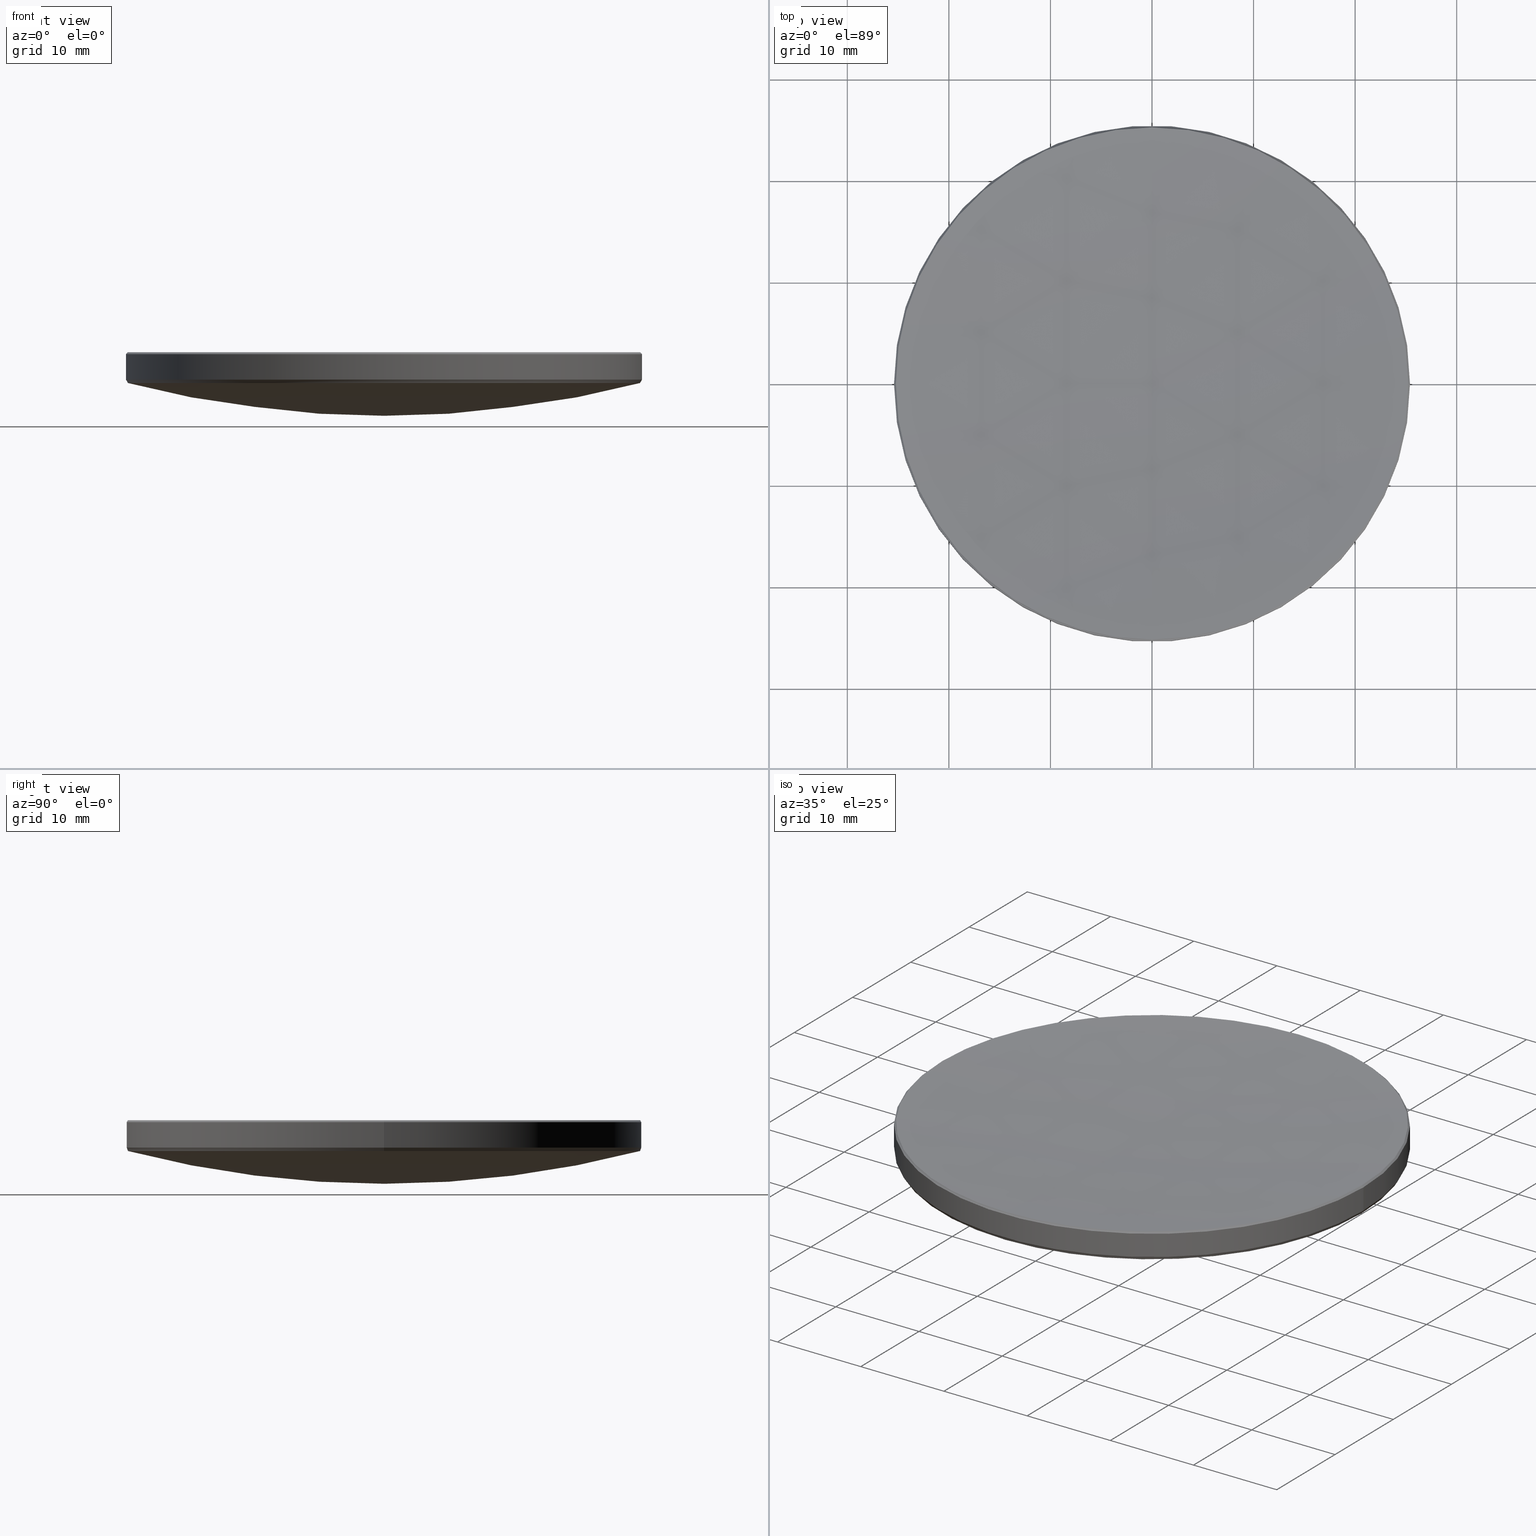
[diagram: canonical four-view strip — front | top / right | iso, engineering-drawing reading convention]
A machine part, canonical four-view strip (front | top / right | iso — engineering-drawing reading convention). The complete STEP part file that produces these views, byte-faithful:
ISO-10303-21;
HEADER;
FILE_DESCRIPTION (( 'STEP AP214' ),
    '1' );
FILE_NAME ('GLM1-050B-300-SWIR.STEP',
    '2024-08-09T02:40:08',
    ( 'Windows User' ),
    ( 'P R C' ),
    'SwSTEP 2.0',
    'SolidWorks 2022',
    '' );
FILE_SCHEMA (( 'AUTOMOTIVE_DESIGN' ));
ENDSEC;

DATA;
#1 =( NAMED_UNIT ( * ) SI_UNIT ( $, .STERADIAN. ) SOLID_ANGLE_UNIT ( ) );
#2 = AXIS2_PLACEMENT_3D ( 'NONE', #36, #12, #121 ) ;
#3 = PRODUCT_DEFINITION_SHAPE ( 'NONE', 'NONE',  #331 ) ;
#4 = LINE ( 'NONE', #318, #110 ) ;
#5 = ORIENTED_EDGE ( 'NONE', *, *, #75, .F. ) ;
#6 = EDGE_CURVE ( 'NONE', #18, #192, #241, .T. ) ;
#7 = EDGE_LOOP ( 'NONE', ( #21, #15, #98, #306, #242 ) ) ;
#8 = DIRECTION ( 'NONE',  ( -1.000000000000000000, 0.000000000000000000, 0.000000000000000000 ) ) ;
#9 = EDGE_LOOP ( 'NONE', ( #24, #288, #215, #254 ) ) ;
#10 = CARTESIAN_POINT ( 'NONE',  ( -25.21668983323140623, 0.000000000000000000, 15.98331016676862681 ) ) ;
#11 = DIRECTION ( 'NONE',  ( -1.000000000000000000, 0.000000000000000000, 0.000000000000000000 ) ) ;
#12 = DIRECTION ( 'NONE',  ( 0.000000000000000000, 0.000000000000000000, -1.000000000000000000 ) ) ;
#13 = FILL_AREA_STYLE ('',( #64 ) ) ;
#14 = AXIS2_PLACEMENT_3D ( 'NONE', #269, #101, #283 ) ;
#15 = ORIENTED_EDGE ( 'NONE', *, *, #313, .F. ) ;
#16 = SURFACE_SIDE_STYLE ('',( #303 ) ) ;
#17 = EDGE_CURVE ( 'NONE', #320, #249, #187, .T. ) ;
#18 = VERTEX_POINT ( 'NONE', #206 ) ;
#19 = DIRECTION ( 'NONE',  ( -0.000000000000000000, -0.000000000000000000, 1.000000000000000000 ) ) ;
#20 = APPLICATION_PROTOCOL_DEFINITION ( 'draft international standard', 'automotive_design', 1998, #260 ) ;
#21 = ORIENTED_EDGE ( 'NONE', *, *, #157, .F. ) ;
#22 = ORIENTED_EDGE ( 'NONE', *, *, #28, .T. ) ;
#23 = ADVANCED_FACE ( 'NONE', ( #103 ), #307, .T. ) ;
#24 = ORIENTED_EDGE ( 'NONE', *, *, #290, .T. ) ;
#25 = PRODUCT ( 'GLM1-050B-300-SWIR', 'GLM1-050B-300-SWIR', '', ( #102 ) ) ;
#26 = AXIS2_PLACEMENT_3D ( 'NONE', #317, #133, #134 ) ;
#27 = ORIENTED_EDGE ( 'NONE', *, *, #204, .T. ) ;
#28 = EDGE_CURVE ( 'NONE', #249, #109, #169, .T. ) ;
#29 = PRODUCT_DEFINITION_FORMATION_WITH_SPECIFIED_SOURCE ( '�κ�', '', #25, .NOT_KNOWN. ) ;
#30 = ORIENTED_EDGE ( 'NONE', *, *, #321, .T. ) ;
#31 = DIRECTION ( 'NONE',  ( 1.000000000000000000, 0.000000000000000000, 0.000000000000000000 ) ) ;
#32 = CARTESIAN_POINT ( 'NONE',  ( -25.39999999999999858, 0.000000000000000000, 13.28032383718598375 ) ) ;
#33 = VECTOR ( 'NONE', #247, 1000.000000000000114 ) ;
#34 = FACE_OUTER_BOUND ( 'NONE', #309, .T. ) ;
#35 = CARTESIAN_POINT ( 'NONE',  ( 25.39999999999999858, 3.110602869834276865E-15, 20.00000000000000000 ) ) ;
#36 = CARTESIAN_POINT ( 'NONE',  ( 0.000000000000000000, 0.000000000000000000, 15.98331016676862681 ) ) ;
#37 = CARTESIAN_POINT ( 'NONE',  ( 25.21668983323140623, 3.099378359385061019E-15, 15.98331016676862681 ) ) ;
#38 = ORIENTED_EDGE ( 'NONE', *, *, #151, .T. ) ;
#39 = ADVANCED_FACE ( 'NONE', ( #83 ), #265, .F. ) ;
#40 = LINE ( 'NONE', #35, #220 ) ;
#41 = VERTEX_POINT ( 'NONE', #85 ) ;
#42 = CIRCLE ( 'NONE', #164, 279.1200000000000614 ) ;
#43 = DIRECTION ( 'NONE',  ( -0.000000000000000000, -0.000000000000000000, -1.000000000000000000 ) ) ;
#44 = ORIENTED_EDGE ( 'NONE', *, *, #28, .F. ) ;
#45 = CARTESIAN_POINT ( 'NONE',  ( 0.000000000000000000, 0.000000000000000000, 20.00000000000000000 ) ) ;
#46 = LINE ( 'NONE', #207, #172 ) ;
#47 = VERTEX_POINT ( 'NONE', #52 ) ;
#48 = APPLICATION_PROTOCOL_DEFINITION ( 'draft international standard', 'automotive_design', 1998, #106 ) ;
#49 = ORIENTED_EDGE ( 'NONE', *, *, #204, .F. ) ;
#50 = FILL_AREA_STYLE_COLOUR ( '', #271 ) ;
#51 = EDGE_CURVE ( 'NONE', #192, #253, #4, .T. ) ;
#52 = CARTESIAN_POINT ( 'NONE',  ( -25.20669079081242003, 3.098766094620413518E-15, 12.94948413701273182 ) ) ;
#53 = CIRCLE ( 'NONE', #289, 25.39999999999999858 ) ;
#54 = ORIENTED_EDGE ( 'NONE', *, *, #211, .F. ) ;
#55 = FACE_OUTER_BOUND ( 'NONE', #262, .T. ) ;
#56 = CONICAL_SURFACE ( 'NONE', #2, 25.21668983323140623, 0.7853981633973063925 ) ;
#57 = DIRECTION ( 'NONE',  ( 0.000000000000000000, 0.000000000000000000, -1.000000000000000000 ) ) ;
#58 = AXIS2_PLACEMENT_3D ( 'NONE', #92, #57, #165 ) ;
#59 = ADVANCED_BREP_SHAPE_REPRESENTATION ( 'GLM1-050B-300-SWIR', ( #246, #116 ), #213 ) ;
#60 = DIRECTION ( 'NONE',  ( -0.000000000000000000, -0.000000000000000000, -1.000000000000000000 ) ) ;
#61 = AXIS2_PLACEMENT_3D ( 'NONE', #45, #210, #232 ) ;
#62 = SURFACE_STYLE_USAGE ( .BOTH. , #16 ) ;
#63 = VECTOR ( 'NONE', #60, 1000.000000000000000 ) ;
#64 = FILL_AREA_STYLE_COLOUR ( '', #111 ) ;
#65 = ORIENTED_EDGE ( 'NONE', *, *, #211, .T. ) ;
#66 = EDGE_CURVE ( 'NONE', #192, #174, #191, .T. ) ;
#67 = DIRECTION ( 'NONE',  ( 1.000000000000000000, 0.000000000000000000, 0.000000000000000000 ) ) ;
#68 = ORIENTED_EDGE ( 'NONE', *, *, #157, .T. ) ;
#69 = STYLED_ITEM ( 'NONE', ( #235 ), #59 ) ;
#70 = CARTESIAN_POINT ( 'NONE',  ( 0.000000000000000000, 0.000000000000000000, 12.94948413701273182 ) ) ;
#71 = CONICAL_SURFACE ( 'NONE', #310, 25.39999999999999858, 0.5287944249354518123 ) ;
#72 = CARTESIAN_POINT ( 'NONE',  ( 0.000000000000000000, 0.000000000000000000, 13.28032383718598375 ) ) ;
#73 = FILL_AREA_STYLE ('',( #50 ) ) ;
#74 = EDGE_LOOP ( 'NONE', ( #152, #287, #185, #123 ) ) ;
#75 = EDGE_CURVE ( 'NONE', #109, #197, #200, .T. ) ;
#76 = CARTESIAN_POINT ( 'NONE',  ( 0.000000000000000000, 0.000000000000000000, 293.9618937912173351 ) ) ;
#77 = AXIS2_PLACEMENT_3D ( 'NONE', #167, #328, #93 ) ;
#78 = VERTEX_POINT ( 'NONE', #224 ) ;
#79 = ADVANCED_FACE ( 'NONE', ( #95 ), #282, .T. ) ;
#80 = DIRECTION ( 'NONE',  ( 1.000000000000000000, 0.000000000000000000, 0.000000000000000000 ) ) ;
#81 = CIRCLE ( 'NONE', #316, 25.20669079081241648 ) ;
#82 = CARTESIAN_POINT ( 'NONE',  ( 0.000000000000000000, 0.000000000000000000, 12.94948413701273182 ) ) ;
#83 = FACE_OUTER_BOUND ( 'NONE', #138, .T. ) ;
#84 = UNCERTAINTY_MEASURE_WITH_UNIT (LENGTH_MEASURE( 1.000000000000000082E-05 ), #182, 'distance_accuracy_value', 'NONE');
#85 = CARTESIAN_POINT ( 'NONE',  ( -3.088153848935836496E-15, -25.21668983323133872, 15.98331016676862681 ) ) ;
#86 = PRESENTATION_LAYER_ASSIGNMENT (  '', '', ( #69 ) ) ;
#87 = VERTEX_POINT ( 'NONE', #295 ) ;
#88 = AXIS2_PLACEMENT_3D ( 'NONE', #82, #194, #91 ) ;
#89 = DIRECTION ( 'NONE',  ( -1.224646799147352961E-16, -1.000000000000000000, 0.000000000000000000 ) ) ;
#90 = CARTESIAN_POINT ( 'NONE',  ( 0.000000000000000000, 0.000000000000000000, 15.98331016676862681 ) ) ;
#91 = DIRECTION ( 'NONE',  ( 1.000000000000000000, 0.000000000000000000, 0.000000000000000000 ) ) ;
#92 = CARTESIAN_POINT ( 'NONE',  ( 0.000000000000000000, 0.000000000000000000, 15.79999999999998117 ) ) ;
#93 = DIRECTION ( 'NONE',  ( 1.000000000000000000, 0.000000000000000000, 0.000000000000000000 ) ) ;
#94 = DIRECTION ( 'NONE',  ( -0.000000000000000000, -0.000000000000000000, 1.000000000000000000 ) ) ;
#95 = FACE_OUTER_BOUND ( 'NONE', #135, .T. ) ;
#96 = DIRECTION ( 'NONE',  ( -0.000000000000000000, -0.000000000000000000, 1.000000000000000000 ) ) ;
#97 = EDGE_CURVE ( 'NONE', #78, #197, #129, .T. ) ;
#98 = ORIENTED_EDGE ( 'NONE', *, *, #176, .F. ) ;
#99 = CARTESIAN_POINT ( 'NONE',  ( 0.000000000000000000, 25.21668983323133872, 15.98331016676862681 ) ) ;
#100 = ORIENTED_EDGE ( 'NONE', *, *, #136, .T. ) ;
#101 = DIRECTION ( 'NONE',  ( -0.000000000000000000, -0.000000000000000000, 1.000000000000000000 ) ) ;
#102 = PRODUCT_CONTEXT ( 'NONE', #106, 'mechanical' ) ;
#103 = FACE_OUTER_BOUND ( 'NONE', #9, .T. ) ;
#104 = CIRCLE ( 'NONE', #198, 25.39999999999999858 ) ;
#105 = EDGE_CURVE ( 'NONE', #231, #41, #233, .T. ) ;
#106 = APPLICATION_CONTEXT ( 'automotive_design' ) ;
#107 = AXIS2_PLACEMENT_3D ( 'NONE', #196, #166, #266 ) ;
#108 = DIRECTION ( 'NONE',  ( -1.000000000000000000, 0.000000000000000000, 0.000000000000000000 ) ) ;
#109 = VERTEX_POINT ( 'NONE', #10 ) ;
#110 = VECTOR ( 'NONE', #240, 1000.000000000000000 ) ;
#111 = COLOUR_RGB ( '',1.000000000000000000, 1.000000000000000000, 1.000000000000000000 ) ;
#112 = CARTESIAN_POINT ( 'NONE',  ( -3.086929319406547016E-15, -25.20669079081240582, 12.94948413701272472 ) ) ;
#113 = ORIENTED_EDGE ( 'NONE', *, *, #136, .F. ) ;
#114 = CARTESIAN_POINT ( 'NONE',  ( 0.000000000000000000, 0.000000000000000000, 293.9618937912173351 ) ) ;
#115 = ADVANCED_FACE ( 'NONE', ( #119 ), #267, .T. ) ;
#116 = AXIS2_PLACEMENT_3D ( 'NONE', #131, #158, #188 ) ;
#117 = DIRECTION ( 'NONE',  ( 0.000000000000000000, 1.000000000000000000, 0.000000000000000000 ) ) ;
#118 = AXIS2_PLACEMENT_3D ( 'NONE', #139, #8, #117 ) ;
#119 = FACE_OUTER_BOUND ( 'NONE', #286, .T. ) ;
#120 = SPHERICAL_SURFACE ( 'NONE', #142, 279.1200000000000614 ) ;
#121 = DIRECTION ( 'NONE',  ( -1.000000000000000000, 0.000000000000000000, 0.000000000000000000 ) ) ;
#122 = DIRECTION ( 'NONE',  ( -1.000000000000000000, 1.224646799147353207E-16, 0.000000000000000000 ) ) ;
#123 = ORIENTED_EDGE ( 'NONE', *, *, #301, .T. ) ;
#124 = STYLED_ITEM ( 'NONE', ( #125 ), #246 ) ;
#125 = PRESENTATION_STYLE_ASSIGNMENT (( #62 ) ) ;
#126 = DIRECTION ( 'NONE',  ( 1.000000000000000000, -0.000000000000000000, 0.000000000000000000 ) ) ;
#127 = ORIENTED_EDGE ( 'NONE', *, *, #51, .F. ) ;
#128 = ORIENTED_EDGE ( 'NONE', *, *, #313, .T. ) ;
#129 = CIRCLE ( 'NONE', #58, 25.39999999999999858 ) ;
#130 = ORIENTED_EDGE ( 'NONE', *, *, #6, .T. ) ;
#131 = CARTESIAN_POINT ( 'NONE',  ( 0.000000000000000000, 0.000000000000000000, 0.000000000000000000 ) ) ;
#132 = AXIS2_PLACEMENT_3D ( 'NONE', #263, #94, #173 ) ;
#133 = DIRECTION ( 'NONE',  ( -1.000000000000000000, 0.000000000000000000, 0.000000000000000000 ) ) ;
#134 = DIRECTION ( 'NONE',  ( 0.000000000000000000, 1.000000000000000000, 0.000000000000000000 ) ) ;
#135 = EDGE_LOOP ( 'NONE', ( #113, #65, #154, #127, #238 ) ) ;
#136 = EDGE_CURVE ( 'NONE', #47, #18, #81, .T. ) ;
#137 = CARTESIAN_POINT ( 'NONE',  ( 25.20669079081242003, 0.000000000000000000, 12.94948413701273182 ) ) ;
#138 = EDGE_LOOP ( 'NONE', ( #209, #38, #22, #156 ) ) ;
#139 = CARTESIAN_POINT ( 'NONE',  ( 0.000000000000000000, 0.000000000000000000, 109.8031321807306142 ) ) ;
#140 = UNCERTAINTY_MEASURE_WITH_UNIT (LENGTH_MEASURE( 1.000000000000000082E-05 ), #329, 'distance_accuracy_value', 'NONE');
#141 = CARTESIAN_POINT ( 'NONE',  ( 0.000000000000000000, 0.000000000000000000, 13.28032383718598375 ) ) ;
#142 = AXIS2_PLACEMENT_3D ( 'NONE', #305, #299, #221 ) ;
#143 = ADVANCED_FACE ( 'NONE', ( #55 ), #293, .T. ) ;
#144 = DIRECTION ( 'NONE',  ( 0.000000000000000000, 0.000000000000000000, -1.000000000000000000 ) ) ;
#145 = CARTESIAN_POINT ( 'NONE',  ( 0.000000000000000000, 0.000000000000000000, 109.8031321807306142 ) ) ;
#146 = ORIENTED_EDGE ( 'NONE', *, *, #17, .T. ) ;
#147 = CIRCLE ( 'NONE', #227, 25.21668983323140623 ) ;
#148 = DIRECTION ( 'NONE',  ( -0.000000000000000000, -0.000000000000000000, -1.000000000000000000 ) ) ;
#149 = ORIENTED_EDGE ( 'NONE', *, *, #17, .F. ) ;
#150 = DIRECTION ( 'NONE',  ( -0.000000000000000000, -0.000000000000000000, 1.000000000000000000 ) ) ;
#151 = EDGE_CURVE ( 'NONE', #231, #249, #42, .T. ) ;
#152 = ORIENTED_EDGE ( 'NONE', *, *, #239, .F. ) ;
#153 = FACE_OUTER_BOUND ( 'NONE', #183, .T. ) ;
#154 = ORIENTED_EDGE ( 'NONE', *, *, #163, .F. ) ;
#155 = CLOSED_SHELL ( 'NONE', ( #79, #168, #275, #143, #23, #296, #115, #39, #259, #228 ) ) ;
#156 = ORIENTED_EDGE ( 'NONE', *, *, #176, .T. ) ;
#157 = EDGE_CURVE ( 'NONE', #320, #78, #161, .T. ) ;
#158 = DIRECTION ( 'NONE',  ( 0.000000000000000000, 0.000000000000000000, 1.000000000000000000 ) ) ;
#159 = UNCERTAINTY_MEASURE_WITH_UNIT (LENGTH_MEASURE( 1.000000000000000082E-05 ), #245, 'distance_accuracy_value', 'NONE');
#160 = PRESENTATION_LAYER_ASSIGNMENT (  '', '', ( #124 ) ) ;
#161 = LINE ( 'NONE', #216, #273 ) ;
#162 = DIRECTION ( 'NONE',  ( 0.7071067811864470976, 8.659560562353703961E-17, -0.7071067811866478259 ) ) ;
#163 = EDGE_CURVE ( 'NONE', #253, #277, #319, .T. ) ;
#164 = AXIS2_PLACEMENT_3D ( 'NONE', #76, #193, #190 ) ;
#165 = DIRECTION ( 'NONE',  ( 1.000000000000000000, 0.000000000000000000, 0.000000000000000000 ) ) ;
#166 = DIRECTION ( 'NONE',  ( -0.000000000000000000, -0.000000000000000000, 1.000000000000000000 ) ) ;
#167 = CARTESIAN_POINT ( 'NONE',  ( 0.000000000000000000, 0.000000000000000000, 12.94948413701273182 ) ) ;
#168 = ADVANCED_FACE ( 'NONE', ( #34 ), #56, .T. ) ;
#169 = CIRCLE ( 'NONE', #302, 25.21668983323140623 ) ;
#170 = ORIENTED_EDGE ( 'NONE', *, *, #66, .T. ) ;
#171 = FACE_OUTER_BOUND ( 'NONE', #7, .T. ) ;
#172 = VECTOR ( 'NONE', #308, 1000.000000000000000 ) ;
#173 = DIRECTION ( 'NONE',  ( -1.000000000000000000, 0.000000000000000000, 0.000000000000000000 ) ) ;
#174 = VERTEX_POINT ( 'NONE', #112 ) ;
#175 = CARTESIAN_POINT ( 'NONE',  ( 0.000000000000000000, 0.000000000000000000, 15.98331016676862681 ) ) ;
#176 = EDGE_CURVE ( 'NONE', #109, #41, #244, .T. ) ;
#177 = CIRCLE ( 'NONE', #77, 25.20669079081241648 ) ;
#178 = LINE ( 'NONE', #252, #63 ) ;
#179 = ORIENTED_EDGE ( 'NONE', *, *, #327, .F. ) ;
#180 = AXIS2_PLACEMENT_3D ( 'NONE', #114, #325, #89 ) ;
#181 = DIRECTION ( 'NONE',  ( -0.000000000000000000, -0.000000000000000000, 1.000000000000000000 ) ) ;
#182 =( LENGTH_UNIT ( ) NAMED_UNIT ( * ) SI_UNIT ( .MILLI., .METRE. ) );
#183 = EDGE_LOOP ( 'NONE', ( #54, #294, #229, #203, #234 ) ) ;
#184 = SURFACE_STYLE_USAGE ( .BOTH. , #258 ) ;
#185 = ORIENTED_EDGE ( 'NONE', *, *, #236, .T. ) ;
#186 = PRODUCT_RELATED_PRODUCT_CATEGORY ( 'part', '', ( #25 ) ) ;
#187 = CIRCLE ( 'NONE', #14, 25.21668983323140623 ) ;
#188 = DIRECTION ( 'NONE',  ( 1.000000000000000000, 0.000000000000000000, 0.000000000000000000 ) ) ;
#189 =( NAMED_UNIT ( * ) PLANE_ANGLE_UNIT ( ) SI_UNIT ( $, .RADIAN. ) );
#190 = DIRECTION ( 'NONE',  ( 0.000000000000000000, 0.000000000000000000, -1.000000000000000000 ) ) ;
#191 = CIRCLE ( 'NONE', #88, 25.20669079081241648 ) ;
#192 = VERTEX_POINT ( 'NONE', #137 ) ;
#193 = DIRECTION ( 'NONE',  ( 1.000000000000000000, 0.000000000000000000, 0.000000000000000000 ) ) ;
#194 = DIRECTION ( 'NONE',  ( 0.000000000000000000, 0.000000000000000000, -1.000000000000000000 ) ) ;
#195 = CIRCLE ( 'NONE', #219, 100.0800000000000125 ) ;
#196 = CARTESIAN_POINT ( 'NONE',  ( 0.000000000000000000, 0.000000000000000000, 15.98331016676862681 ) ) ;
#197 = VERTEX_POINT ( 'NONE', #268 ) ;
#198 = AXIS2_PLACEMENT_3D ( 'NONE', #248, #202, #67 ) ;
#199 = DIRECTION ( 'NONE',  ( 1.000000000000000000, 0.000000000000000000, 0.000000000000000000 ) ) ;
#200 = LINE ( 'NONE', #300, #33 ) ;
#201 = DIRECTION ( 'NONE',  ( -1.224646799147353207E-16, -1.000000000000000000, 0.000000000000000000 ) ) ;
#202 = DIRECTION ( 'NONE',  ( 0.000000000000000000, 0.000000000000000000, -1.000000000000000000 ) ) ;
#203 = ORIENTED_EDGE ( 'NONE', *, *, #51, .T. ) ;
#204 = EDGE_CURVE ( 'NONE', #87, #18, #261, .T. ) ;
#205 = CARTESIAN_POINT ( 'NONE',  ( 25.39999999999999858, 3.110602869834276865E-15, 13.28032383718598375 ) ) ;
#206 = CARTESIAN_POINT ( 'NONE',  ( 0.000000000000000000, 25.20669079081240582, 12.94948413701272472 ) ) ;
#207 = CARTESIAN_POINT ( 'NONE',  ( -25.39999999999999858, 3.110602869834276865E-15, 13.28032383718598375 ) ) ;
#208 =( NAMED_UNIT ( * ) PLANE_ANGLE_UNIT ( ) SI_UNIT ( $, .RADIAN. ) );
#209 = ORIENTED_EDGE ( 'NONE', *, *, #105, .F. ) ;
#210 = DIRECTION ( 'NONE',  ( -0.000000000000000000, -0.000000000000000000, -1.000000000000000000 ) ) ;
#211 = EDGE_CURVE ( 'NONE', #47, #277, #46, .T. ) ;
#212 = EDGE_LOOP ( 'NONE', ( #322, #311, #128, #146 ) ) ;
#213 =( GEOMETRIC_REPRESENTATION_CONTEXT ( 3 ) GLOBAL_UNCERTAINTY_ASSIGNED_CONTEXT ( ( #140 ) ) GLOBAL_UNIT_ASSIGNED_CONTEXT ( ( #329, #208, #1 ) ) REPRESENTATION_CONTEXT ( 'NONE', 'WORKASPACE' ) );
#214 = DIRECTION ( 'NONE',  ( 0.000000000000000000, 1.000000000000000000, 0.000000000000000000 ) ) ;
#215 = ORIENTED_EDGE ( 'NONE', *, *, #163, .T. ) ;
#216 = CARTESIAN_POINT ( 'NONE',  ( 25.21668983323140623, 3.088153848935844384E-15, 15.98331016676862681 ) ) ;
#217 = AXIS2_PLACEMENT_3D ( 'NONE', #243, #126, #284 ) ;
#218 = DIRECTION ( 'NONE',  ( 0.000000000000000000, 0.000000000000000000, -1.000000000000000000 ) ) ;
#219 = AXIS2_PLACEMENT_3D ( 'NONE', #145, #122, #201 ) ;
#220 = VECTOR ( 'NONE', #148, 1000.000000000000000 ) ;
#221 = DIRECTION ( 'NONE',  ( 0.000000000000000000, 1.000000000000000000, 0.000000000000000000 ) ) ;
#222 = DIRECTION ( 'NONE',  ( -0.000000000000000000, -0.000000000000000000, 1.000000000000000000 ) ) ;
#223 = CARTESIAN_POINT ( 'NONE',  ( 0.000000000000000000, 0.000000000000000000, 20.00000000000000000 ) ) ;
#224 = CARTESIAN_POINT ( 'NONE',  ( 25.39999999999999858, 3.110602869834276865E-15, 15.79999999999998117 ) ) ;
#225 = FACE_OUTER_BOUND ( 'NONE', #74, .T. ) ;
#226 = AXIS2_PLACEMENT_3D ( 'NONE', #70, #272, #332 ) ;
#227 = AXIS2_PLACEMENT_3D ( 'NONE', #90, #96, #199 ) ;
#228 = ADVANCED_FACE ( 'NONE', ( #153 ), #71, .T. ) ;
#229 = ORIENTED_EDGE ( 'NONE', *, *, #66, .F. ) ;
#230 = DIRECTION ( 'NONE',  ( 1.000000000000000000, 0.000000000000000000, 0.000000000000000000 ) ) ;
#231 = VERTEX_POINT ( 'NONE', #304 ) ;
#232 = DIRECTION ( 'NONE',  ( -1.000000000000000000, 0.000000000000000000, 0.000000000000000000 ) ) ;
#233 = CIRCLE ( 'NONE', #180, 279.1200000000000614 ) ;
#234 = ORIENTED_EDGE ( 'NONE', *, *, #301, .F. ) ;
#235 = PRESENTATION_STYLE_ASSIGNMENT (( #184 ) ) ;
#236 = EDGE_CURVE ( 'NONE', #197, #277, #178, .T. ) ;
#237 = CARTESIAN_POINT ( 'NONE',  ( 0.000000000000000000, 0.000000000000000000, 293.9618937912173351 ) ) ;
#238 = ORIENTED_EDGE ( 'NONE', *, *, #6, .F. ) ;
#239 = EDGE_CURVE ( 'NONE', #78, #253, #40, .T. ) ;
#240 = DIRECTION ( 'NONE',  ( 0.5044927953932116793, 0.000000000000000000, 0.8634159017509134282 ) ) ;
#241 = CIRCLE ( 'NONE', #226, 25.20669079081241648 ) ;
#242 = ORIENTED_EDGE ( 'NONE', *, *, #97, .F. ) ;
#243 = CARTESIAN_POINT ( 'NONE',  ( 0.000000000000000000, 0.000000000000000000, 109.8031321807306142 ) ) ;
#244 = CIRCLE ( 'NONE', #107, 25.21668983323140623 ) ;
#245 =( LENGTH_UNIT ( ) NAMED_UNIT ( * ) SI_UNIT ( .MILLI., .METRE. ) );
#246 = MANIFOLD_SOLID_BREP ( '����2', #155 ) ;
#247 = DIRECTION ( 'NONE',  ( -0.7071067811864470976, 0.000000000000000000, -0.7071067811866478259 ) ) ;
#248 = CARTESIAN_POINT ( 'NONE',  ( 0.000000000000000000, 0.000000000000000000, 15.79999999999998117 ) ) ;
#249 = VERTEX_POINT ( 'NONE', #99 ) ;
#250 = FACE_OUTER_BOUND ( 'NONE', #212, .T. ) ;
#251 = ORIENTED_EDGE ( 'NONE', *, *, #327, .T. ) ;
#252 = CARTESIAN_POINT ( 'NONE',  ( -25.39999999999999858, 0.000000000000000000, 20.00000000000000000 ) ) ;
#253 = VERTEX_POINT ( 'NONE', #205 ) ;
#254 = ORIENTED_EDGE ( 'NONE', *, *, #236, .F. ) ;
#255 = AXIS2_PLACEMENT_3D ( 'NONE', #237, #108, #214 ) ;
#256 = MECHANICAL_DESIGN_GEOMETRIC_PRESENTATION_REPRESENTATION (  '', ( #124 ), #264 ) ;
#257 = PRODUCT_DEFINITION_CONTEXT ( 'detailed design', #260, 'design' ) ;
#258 = SURFACE_SIDE_STYLE ('',( #285 ) ) ;
#259 = ADVANCED_FACE ( 'NONE', ( #171 ), #297, .T. ) ;
#260 = APPLICATION_CONTEXT ( 'automotive_design' ) ;
#261 = CIRCLE ( 'NONE', #217, 100.0800000000000125 ) ;
#262 = EDGE_LOOP ( 'NONE', ( #49, #251, #30, #100 ) ) ;
#263 = CARTESIAN_POINT ( 'NONE',  ( 0.000000000000000000, 0.000000000000000000, 13.28032383718598375 ) ) ;
#264 =( GEOMETRIC_REPRESENTATION_CONTEXT ( 3 ) GLOBAL_UNCERTAINTY_ASSIGNED_CONTEXT ( ( #159 ) ) GLOBAL_UNIT_ASSIGNED_CONTEXT ( ( #245, #278, #276 ) ) REPRESENTATION_CONTEXT ( 'NONE', 'WORKASPACE' ) );
#265 = SPHERICAL_SURFACE ( 'NONE', #255, 279.1200000000000614 ) ;
#266 = DIRECTION ( 'NONE',  ( 1.000000000000000000, 0.000000000000000000, 0.000000000000000000 ) ) ;
#267 = SPHERICAL_SURFACE ( 'NONE', #118, 100.0800000000000125 ) ;
#268 = CARTESIAN_POINT ( 'NONE',  ( -25.39999999999999858, 0.000000000000000000, 15.79999999999998117 ) ) ;
#269 = CARTESIAN_POINT ( 'NONE',  ( 0.000000000000000000, 0.000000000000000000, 15.98331016676862681 ) ) ;
#270 = DIRECTION ( 'NONE',  ( -1.000000000000000000, 0.000000000000000000, 0.000000000000000000 ) ) ;
#271 = COLOUR_RGB ( '',1.000000000000000000, 1.000000000000000000, 1.000000000000000000 ) ;
#272 = DIRECTION ( 'NONE',  ( 0.000000000000000000, 0.000000000000000000, -1.000000000000000000 ) ) ;
#273 = VECTOR ( 'NONE', #162, 1000.000000000000114 ) ;
#274 = CARTESIAN_POINT ( 'NONE',  ( 0.000000000000000000, 0.000000000000000000, 13.28032383718598375 ) ) ;
#275 = ADVANCED_FACE ( 'NONE', ( #250 ), #120, .F. ) ;
#276 =( NAMED_UNIT ( * ) SI_UNIT ( $, .STERADIAN. ) SOLID_ANGLE_UNIT ( ) );
#277 = VERTEX_POINT ( 'NONE', #32 ) ;
#278 =( NAMED_UNIT ( * ) PLANE_ANGLE_UNIT ( ) SI_UNIT ( $, .RADIAN. ) );
#279 = MECHANICAL_DESIGN_GEOMETRIC_PRESENTATION_REPRESENTATION (  '', ( #69 ), #323 ) ;
#280 = CYLINDRICAL_SURFACE ( 'NONE', #314, 25.39999999999999858 ) ;
#281 = ORIENTED_EDGE ( 'NONE', *, *, #290, .F. ) ;
#282 = CONICAL_SURFACE ( 'NONE', #324, 25.39999999999999858, 0.5287944249354518123 ) ;
#283 = DIRECTION ( 'NONE',  ( 1.000000000000000000, 0.000000000000000000, 0.000000000000000000 ) ) ;
#284 = DIRECTION ( 'NONE',  ( 0.000000000000000000, 0.000000000000000000, -1.000000000000000000 ) ) ;
#285 = SURFACE_STYLE_FILL_AREA ( #73 ) ;
#286 = EDGE_LOOP ( 'NONE', ( #179, #27, #130, #170 ) ) ;
#287 = ORIENTED_EDGE ( 'NONE', *, *, #97, .T. ) ;
#288 = ORIENTED_EDGE ( 'NONE', *, *, #239, .T. ) ;
#289 = AXIS2_PLACEMENT_3D ( 'NONE', #274, #150, #326 ) ;
#290 = EDGE_CURVE ( 'NONE', #197, #78, #104, .T. ) ;
#291 = CARTESIAN_POINT ( 'NONE',  ( 0.000000000000000000, 0.000000000000000000, 15.98331016676862681 ) ) ;
#292 = AXIS2_PLACEMENT_3D ( 'NONE', #175, #144, #11 ) ;
#293 = SPHERICAL_SURFACE ( 'NONE', #26, 100.0800000000000125 ) ;
#294 = ORIENTED_EDGE ( 'NONE', *, *, #321, .F. ) ;
#295 = CARTESIAN_POINT ( 'NONE',  ( 0.000000000000000000, 6.128132582933356375E-15, 9.723132180730592822 ) ) ;
#296 = ADVANCED_FACE ( 'NONE', ( #225 ), #280, .T. ) ;
#297 = CONICAL_SURFACE ( 'NONE', #292, 25.21668983323140623, 0.7853981633973063925 ) ;
#298 = CARTESIAN_POINT ( 'NONE',  ( 0.000000000000000000, 0.000000000000000000, 12.94948413701273182 ) ) ;
#299 = DIRECTION ( 'NONE',  ( -1.000000000000000000, 0.000000000000000000, 0.000000000000000000 ) ) ;
#300 = CARTESIAN_POINT ( 'NONE',  ( -25.21668983323140623, 0.000000000000000000, 15.98331016676862681 ) ) ;
#301 = EDGE_CURVE ( 'NONE', #277, #253, #53, .T. ) ;
#302 = AXIS2_PLACEMENT_3D ( 'NONE', #291, #19, #230 ) ;
#303 = SURFACE_STYLE_FILL_AREA ( #13 ) ;
#304 = CARTESIAN_POINT ( 'NONE',  ( 0.000000000000000000, 1.709117072890046227E-14, 14.84189379121730923 ) ) ;
#305 = CARTESIAN_POINT ( 'NONE',  ( 0.000000000000000000, 0.000000000000000000, 293.9618937912173351 ) ) ;
#306 = ORIENTED_EDGE ( 'NONE', *, *, #75, .T. ) ;
#307 = CYLINDRICAL_SURFACE ( 'NONE', #61, 25.39999999999999858 ) ;
#308 = DIRECTION ( 'NONE',  ( -0.5044927953932116793, 6.178254870711972724E-17, 0.8634159017509134282 ) ) ;
#309 = EDGE_LOOP ( 'NONE', ( #149, #68, #281, #5, #44 ) ) ;
#310 = AXIS2_PLACEMENT_3D ( 'NONE', #72, #181, #330 ) ;
#311 = ORIENTED_EDGE ( 'NONE', *, *, #105, .T. ) ;
#312 = SHAPE_DEFINITION_REPRESENTATION ( #3, #59 ) ;
#313 = EDGE_CURVE ( 'NONE', #41, #320, #147, .T. ) ;
#314 = AXIS2_PLACEMENT_3D ( 'NONE', #223, #43, #270 ) ;
#315 =( NAMED_UNIT ( * ) SI_UNIT ( $, .STERADIAN. ) SOLID_ANGLE_UNIT ( ) );
#316 = AXIS2_PLACEMENT_3D ( 'NONE', #298, #218, #80 ) ;
#317 = CARTESIAN_POINT ( 'NONE',  ( 0.000000000000000000, 0.000000000000000000, 109.8031321807306142 ) ) ;
#318 = CARTESIAN_POINT ( 'NONE',  ( 25.39999999999999858, 0.000000000000000000, 13.28032383718598375 ) ) ;
#319 = CIRCLE ( 'NONE', #132, 25.39999999999999858 ) ;
#320 = VERTEX_POINT ( 'NONE', #37 ) ;
#321 = EDGE_CURVE ( 'NONE', #174, #47, #177, .T. ) ;
#322 = ORIENTED_EDGE ( 'NONE', *, *, #151, .F. ) ;
#323 =( GEOMETRIC_REPRESENTATION_CONTEXT ( 3 ) GLOBAL_UNCERTAINTY_ASSIGNED_CONTEXT ( ( #84 ) ) GLOBAL_UNIT_ASSIGNED_CONTEXT ( ( #182, #189, #315 ) ) REPRESENTATION_CONTEXT ( 'NONE', 'WORKASPACE' ) );
#324 = AXIS2_PLACEMENT_3D ( 'NONE', #141, #222, #31 ) ;
#325 = DIRECTION ( 'NONE',  ( -1.000000000000000000, 1.224646799147353207E-16, 0.000000000000000000 ) ) ;
#326 = DIRECTION ( 'NONE',  ( -1.000000000000000000, 0.000000000000000000, 0.000000000000000000 ) ) ;
#327 = EDGE_CURVE ( 'NONE', #87, #174, #195, .T. ) ;
#328 = DIRECTION ( 'NONE',  ( 0.000000000000000000, 0.000000000000000000, -1.000000000000000000 ) ) ;
#329 =( LENGTH_UNIT ( ) NAMED_UNIT ( * ) SI_UNIT ( .MILLI., .METRE. ) );
#330 = DIRECTION ( 'NONE',  ( 1.000000000000000000, 0.000000000000000000, 0.000000000000000000 ) ) ;
#331 = PRODUCT_DEFINITION ( 'δ֪', '', #29, #257 ) ;
#332 = DIRECTION ( 'NONE',  ( 1.000000000000000000, 0.000000000000000000, 0.000000000000000000 ) ) ;
ENDSEC;
END-ISO-10303-21;
